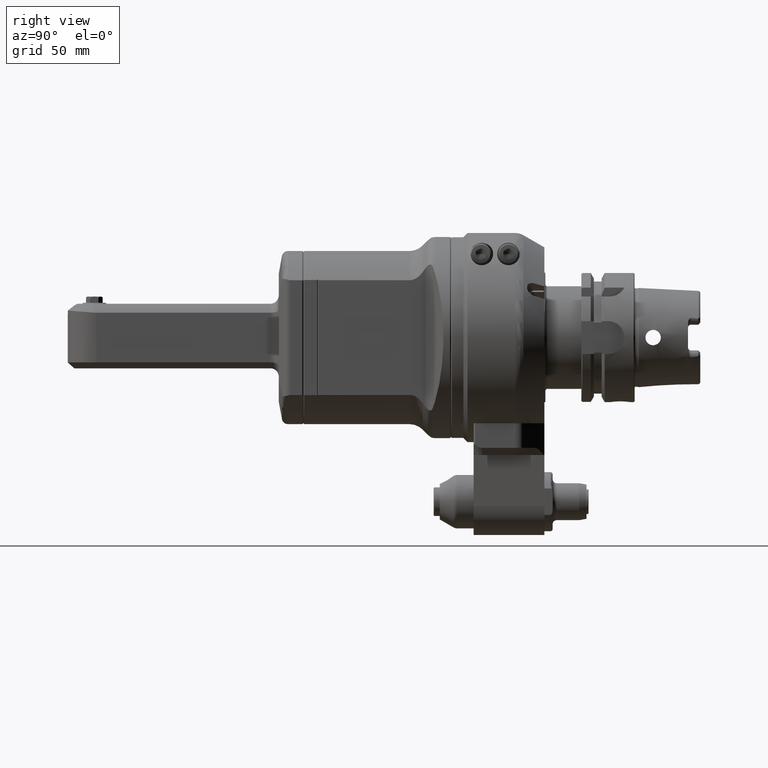
[diagram: clean part render]
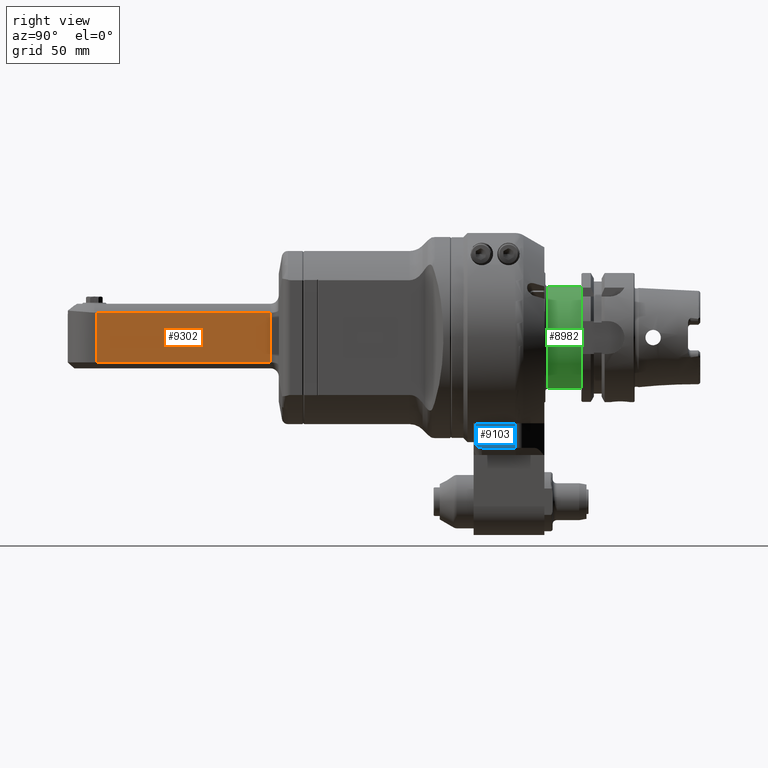
[diagram: same view with three faces highlighted in distinct colors, each labeled with its STEP entity id]
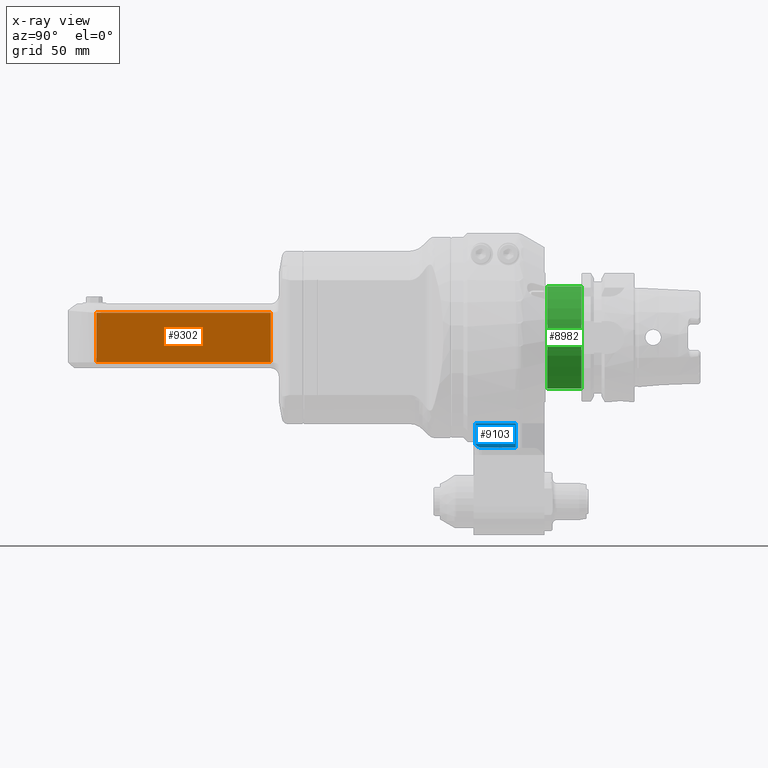
[diagram: x-ray of the same camera — body ghosted, the three highlighted faces saturated]
A machine part, right view with three faces highlighted in distinct colors.
The next image is the same camera in x-ray (body ghosted, the three faces saturated) — at least one of them is partly hidden behind the body in this view.
Their STEP definitions:

[orange] entity #9302 — the highlighted planar face has unit normal (-1, -0, 0).
#516=PLANE('',#10338);
#1095=FACE_OUTER_BOUND('',#1688,.T.);
#1688=EDGE_LOOP('',(#8227,#8228,#8229,#8230));
#2900=LINE('',#58164,#3548);
#2901=LINE('',#58215,#3549);
#2902=LINE('',#58217,#3550);
#2903=LINE('',#58218,#3551);
#3548=VECTOR('',#12636,24.1867392260202);
#3549=VECTOR('',#12639,10.);
#3550=VECTOR('',#12640,24.1867732449);
#3551=VECTOR('',#12641,84.8950000002201);
#4453=VERTEX_POINT('',#58162);
#4454=VERTEX_POINT('',#58163);
#4457=VERTEX_POINT('',#58214);
#4458=VERTEX_POINT('',#58216);
#5740=EDGE_CURVE('',#4453,#4454,#2900,.T.);
#5745=EDGE_CURVE('',#4457,#4453,#2901,.T.);
#5746=EDGE_CURVE('',#4458,#4457,#2902,.T.);
#5747=EDGE_CURVE('',#4454,#4458,#2903,.T.);
#8227=ORIENTED_EDGE('',*,*,#5740,.F.);
#8228=ORIENTED_EDGE('',*,*,#5745,.F.);
#8229=ORIENTED_EDGE('',*,*,#5746,.F.);
#8230=ORIENTED_EDGE('',*,*,#5747,.F.);
#9302=ADVANCED_FACE('',(#1095),#516,.F.);
#10338=AXIS2_PLACEMENT_3D('',#58213,#12637,#12638);
#12636=DIRECTION('',(3.54936204633097E-7,-0.999999999988093,4.86695597069497E-6));
#12637=DIRECTION('center_axis',(0.,0.,-1.));
#12638=DIRECTION('ref_axis',(1.,0.,0.));
#12639=DIRECTION('',(1.,0.,0.));
#12640=DIRECTION('',(0.,1.,0.));
#12641=DIRECTION('',(-0.999999999999999,-4.269316832699E-8,-7.84233801245099E-9));
#58162=CARTESIAN_POINT('',(169.894964739393,12.0930067896213,13.9996043581265));
#58163=CARTESIAN_POINT('',(169.895000000225,-12.0933848279044,14.0000004438547));
#58164=CARTESIAN_POINT('',(169.8949914155,12.09335622772,13.99988294998));
#58213=CARTESIAN_POINT('Origin',(84.5,-64.64325287337,14.));
#58214=CARTESIAN_POINT('',(85.,12.09338662245,14.));
#58215=CARTESIAN_POINT('',(128.465,12.0933866224478,14.));
#58216=CARTESIAN_POINT('',(85.,-12.09338662245,14.));
#58217=CARTESIAN_POINT('',(85.,-12.09338662245,14.));
#58218=CARTESIAN_POINT('',(169.8950000002,-12.09338299801,14.00000066578));

[blue] entity #9103 — the highlighted planar face has unit normal (-1, 0, 0).
#255=(
BOUNDED_CURVE()
B_SPLINE_CURVE(2,(#15500,#15501,#15502),.UNSPECIFIED.,.F.,.F.)
B_SPLINE_CURVE_WITH_KNOTS((3,3),(1.73736103353119,2.47170469126721),
 .UNSPECIFIED.)
CURVE()
GEOMETRIC_REPRESENTATION_ITEM()
RATIONAL_B_SPLINE_CURVE((1.75262800199655,1.75262800199655,1.61816620350832))
REPRESENTATION_ITEM('')
);
#426=PLANE('',#9970);
#896=FACE_OUTER_BOUND('',#1460,.T.);
#1460=EDGE_LOOP('',(#7235,#7236,#7237,#7238,#7239));
#2673=LINE('',#15490,#3321);
#2676=LINE('',#15497,#3324);
#2677=LINE('',#15499,#3325);
#2678=LINE('',#15503,#3326);
#3321=VECTOR('',#11673,16.58801200719);
#3324=VECTOR('',#11678,19.58801152481);
#3325=VECTOR('',#11679,10.59664825895);
#3326=VECTOR('',#11680,12.03589858901);
#4108=VERTEX_POINT('',#15483);
#4110=VERTEX_POINT('',#15489);
#4112=VERTEX_POINT('',#15495);
#4113=VERTEX_POINT('',#15496);
#4114=VERTEX_POINT('',#15498);
#5227=EDGE_CURVE('',#4110,#4108,#2673,.T.);
#5230=EDGE_CURVE('',#4112,#4113,#2676,.T.);
#5231=EDGE_CURVE('',#4114,#4112,#2677,.T.);
#5232=EDGE_CURVE('',#4110,#4114,#255,.T.);
#5233=EDGE_CURVE('',#4113,#4108,#2678,.T.);
#7235=ORIENTED_EDGE('',*,*,#5230,.F.);
#7236=ORIENTED_EDGE('',*,*,#5231,.F.);
#7237=ORIENTED_EDGE('',*,*,#5232,.F.);
#7238=ORIENTED_EDGE('',*,*,#5227,.T.);
#7239=ORIENTED_EDGE('',*,*,#5233,.F.);
#9103=ADVANCED_FACE('',(#896),#426,.F.);
#9970=AXIS2_PLACEMENT_3D('',#15494,#11676,#11677);
#11673=DIRECTION('',(-1.,-1.179767761705E-8,4.371496648698E-12));
#11676=DIRECTION('center_axis',(0.,0.,-1.));
#11677=DIRECTION('ref_axis',(0.,1.,0.));
#11678=DIRECTION('',(-1.,0.,0.));
#11679=DIRECTION('',(-6.326501123821E-13,-1.,2.782721744977E-14));
#11680=DIRECTION('',(1.751169642154E-10,1.,6.023370402588E-12));
#15483=CARTESIAN_POINT('',(-37.5880115227062,38.7858985008135,29.0000000101783));
#15489=CARTESIAN_POINT('',(-20.99999951552,38.78589878471,29.));
#15490=CARTESIAN_POINT('',(-20.99999951552,38.78589878471,29.));
#15494=CARTESIAN_POINT('Origin',(-43.,75.75,29.));
#15495=CARTESIAN_POINT('',(-18.,26.75,29.));
#15496=CARTESIAN_POINT('',(-37.58801152481,26.75,29.));
#15497=CARTESIAN_POINT('',(-18.,26.75,29.));
#15498=CARTESIAN_POINT('',(-17.99999999999,37.34664825895,29.));
#15499=CARTESIAN_POINT('',(-17.99999999999,37.34664825895,29.));
#15500=CARTESIAN_POINT('Ctrl Pts',(-20.99999951552,38.7858987847032,29.));
#15501=CARTESIAN_POINT('Ctrl Pts',(-19.6150798917032,38.7858987847032,29.));
#15502=CARTESIAN_POINT('Ctrl Pts',(-18.0000000000767,37.3466482590093,29.));
#15503=CARTESIAN_POINT('',(-37.58801152481,26.75,29.));

[green] entity #8982 — the highlighted cylindrical surface (bore or boss wall) has radius 25 mm, axis along (0, -1, 0).
#775=FACE_OUTER_BOUND('',#1330,.T.);
#1330=EDGE_LOOP('',(#6588,#6589,#6590,#6591,#6592));
#1882=CIRCLE('',#9726,25.);
#1884=CIRCLE('',#9728,25.);
#1885=CIRCLE('',#9730,25.);
#2537=LINE('',#14156,#3185);
#3185=VECTOR('',#11057,25.);
#3897=VERTEX_POINT('',#14149);
#3898=VERTEX_POINT('',#14150);
#3899=VERTEX_POINT('',#14155);
#4901=EDGE_CURVE('',#3897,#3898,#1882,.T.);
#4903=EDGE_CURVE('',#3898,#3897,#1884,.T.);
#4904=EDGE_CURVE('',#3897,#3899,#2537,.T.);
#4905=EDGE_CURVE('',#3899,#3899,#1885,.T.);
#6588=ORIENTED_EDGE('',*,*,#4901,.F.);
#6589=ORIENTED_EDGE('',*,*,#4904,.T.);
#6590=ORIENTED_EDGE('',*,*,#4905,.F.);
#6591=ORIENTED_EDGE('',*,*,#4904,.F.);
#6592=ORIENTED_EDGE('',*,*,#4903,.F.);
#8750=CYLINDRICAL_SURFACE('',#9729,25.);
#8982=ADVANCED_FACE('',(#775),#8750,.T.);
#9726=AXIS2_PLACEMENT_3D('',#14151,#11049,#11050);
#9728=AXIS2_PLACEMENT_3D('',#14153,#11053,#11054);
#9729=AXIS2_PLACEMENT_3D('',#14154,#11055,#11056);
#9730=AXIS2_PLACEMENT_3D('',#14157,#11058,#11059);
#11049=DIRECTION('center_axis',(0.,0.,-1.));
#11050=DIRECTION('ref_axis',(1.,0.,0.));
#11053=DIRECTION('center_axis',(0.,0.,-1.));
#11054=DIRECTION('ref_axis',(1.,0.,0.));
#11055=DIRECTION('center_axis',(0.,0.,-1.));
#11056=DIRECTION('ref_axis',(-1.,0.,0.));
#11057=DIRECTION('',(0.,0.,1.));
#11058=DIRECTION('center_axis',(0.,0.,1.));
#11059=DIRECTION('ref_axis',(-0.322000000000014,-0.94673966854674,0.));
#14149=CARTESIAN_POINT('',(25.,-3.06161699786838E-15,8.495));
#14150=CARTESIAN_POINT('',(-25.,-1.65327317884884E-14,8.495));
#14151=CARTESIAN_POINT('Origin',(0.,-1.347111479062E-14,8.495));
#14153=CARTESIAN_POINT('Origin',(0.,-1.347111479062E-14,8.495));
#14154=CARTESIAN_POINT('Origin',(0.,0.,18.445));
#14155=CARTESIAN_POINT('',(25.,-3.06161699786838E-15,24.995));
#14156=CARTESIAN_POINT('',(25.,-3.06161699786838E-15,18.445));
#14157=CARTESIAN_POINT('Origin',(0.,0.,24.995));